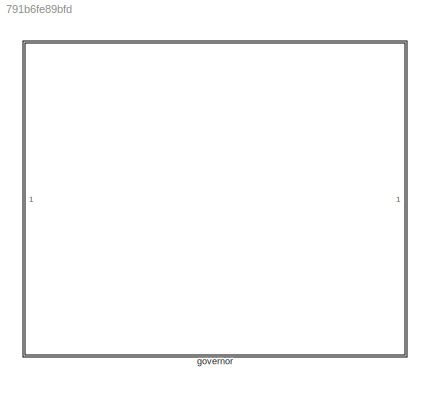
MODEL slx_791b6fe89bfd
KIND library
CONFIG AbsTol = auto
CONFIG EnableMultiTasking = off
CONFIG FixedStep = auto
CONFIG MaxStep = auto
CONFIG MinStep = auto
CONFIG RelTol = 1e-3
CONFIG SampleTimeConstraint = Unconstrained
CONFIG SolverName = VariableStepAuto
CONFIG StartTime = 0.0
CONFIG StopTime = 10.0
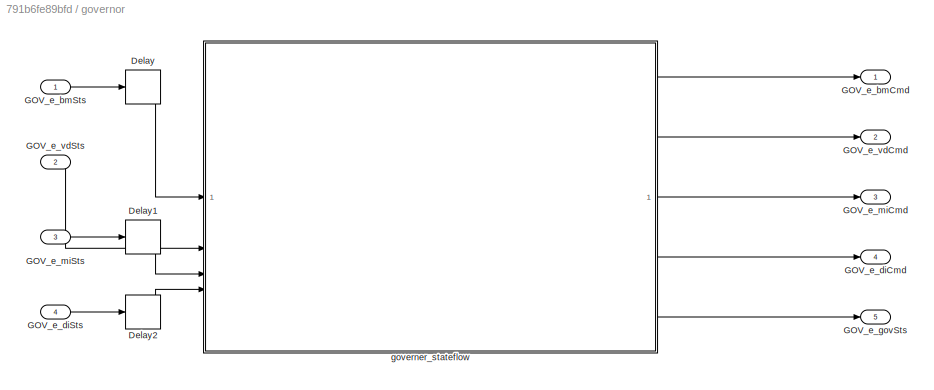
BLOCK [SubSystem] governor
BLOCK [Delay] governor/Delay
  DelayLength = 1
  InitialCondition = BM_STATUSES.BM_UNKNOWN
  InputPortMap = u0
BLOCK [Delay] governor/Delay1
  DelayLength = 1
  InitialCondition = MI_STATUSES.UNKNOWN
  InputPortMap = u0
BLOCK [Delay] governor/Delay2
  DelayLength = 1
  InitialCondition = DI_STATUSES.DI_UNKNOWN
  InputPortMap = u0
BLOCK [Outport] governor/GOV_e_bmCmd
BLOCK [Inport] governor/GOV_e_bmSts
BLOCK [Outport] governor/GOV_e_diCmd
  Port = 4
BLOCK [Inport] governor/GOV_e_diSts
  Port = 4
BLOCK [Outport] governor/GOV_e_govSts
  Port = 5
BLOCK [Outport] governor/GOV_e_miCmd
  Port = 3
BLOCK [Inport] governor/GOV_e_miSts
  Port = 3
BLOCK [Outport] governor/GOV_e_vdCmd
  Port = 2
BLOCK [Inport] governor/GOV_e_vdSts
  Port = 2
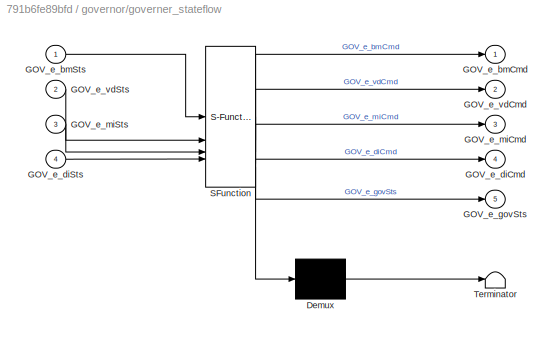
BLOCK [SubSystem] governor/governer_stateflow
  ErrorFcn = Stateflow.Translate.translate
  PermitHierarchicalResolution = ExplicitOnly
  SFBlockType = Chart
  TreatAsAtomicUnit = on
BLOCK [Demux] governor/governer_stateflow/ Demux 
  Outputs = 1
BLOCK [S-Function] governor/governer_stateflow/ SFunction 
  EnableBusSupport = off
  FunctionName = sf_sfun
  PortCounts = [4 6]
  SFcnIsStateOwnerBlock = off
  SFunctionDeploymentMode = off
  Tag = Stateflow S-Function 8
BLOCK [Terminator] governor/governer_stateflow/ Terminator 
BLOCK [Outport] governor/governer_stateflow/GOV_e_bmCmd
BLOCK [Inport] governor/governer_stateflow/GOV_e_bmSts
BLOCK [Outport] governor/governer_stateflow/GOV_e_diCmd
  Port = 4
BLOCK [Inport] governor/governer_stateflow/GOV_e_diSts
  Port = 4
BLOCK [Outport] governor/governer_stateflow/GOV_e_govSts
  Port = 5
BLOCK [Outport] governor/governer_stateflow/GOV_e_miCmd
  Port = 3
BLOCK [Inport] governor/governer_stateflow/GOV_e_miSts
  Port = 3
BLOCK [Outport] governor/governer_stateflow/GOV_e_vdCmd
  Port = 2
BLOCK [Inport] governor/governer_stateflow/GOV_e_vdSts
  Port = 2
LINE governor/Delay1:1 -> governor/governer_stateflow:3
LINE governor/Delay2:1 -> governor/governer_stateflow:4
LINE governor/Delay:1 -> governor/governer_stateflow:1
LINE governor/GOV_e_bmSts:1 -> governor/Delay:1
LINE governor/GOV_e_diSts:1 -> governor/Delay2:1
LINE governor/GOV_e_miSts:1 -> governor/Delay1:1
LINE governor/GOV_e_vdSts:1 -> governor/governer_stateflow:2
LINE governor/governer_stateflow:1 -> governor/GOV_e_bmCmd:1
LINE governor/governer_stateflow:2 -> governor/GOV_e_vdCmd:1
LINE governor/governer_stateflow:3 -> governor/GOV_e_miCmd:1
LINE governor/governer_stateflow:4 -> governor/GOV_e_diCmd:1
LINE governor/governer_stateflow:5 -> governor/GOV_e_govSts:1
CHART governor/governer_stateflow states=16 transitions=18
  STATE_LABEL 'Initialize_outputs\nen:\nGOV_e_govSts = GOV_STATUSES.GOV_INIT;\nGOV_e_diCmd = DI_CMD.DI_CMD_INIT;\nGOV_e_bmCmd = BM_CMD.BM_CMD_INIT;\nmotorStartCount = 0;\n'
  STATE_LABEL 'STARTUP\nen:\nGOV_e_govSts = GOV_STATUSES.GOV_STARTUP;'
  STATE_LABEL 'HV_startup\nen:\nGOV_e_bmCmd = ...\n    BM_CMD.HV_STARTUP;'
  STATE_LABEL 'ReadyToDrive\nen:\nGOV_e_diCmd = ...\n    DI_CMD.HV_ON;\n'
  STATE_LABEL 'Command_motor_startup\nen:\nGOV_e_miCmd = MI_CMD.CMD_STARTUP;\nmotorStartCount = motorStartCount+1;\n'
  STATE_LABEL 'Send_ReadyToDrive\nen:\nGOV_e_diCmd = DI_CMD.READY_TO_DRIVE;'
  STATE_LABEL '[GOV_e_bmSts == BM_STATUSES.BM_RUNNING]'
  STATE_LABEL '[GOV_e_diSts == DI_STATUSES.READY_TO_DRIVE_REQ]'
  STATE_LABEL '[GOV_e_miSts == ...\nMI_STATUSES.RUNNING]'
  STATE_LABEL 'HV_startup\nen:\nGOV_e_bmCmd = ...\n    BM_CMD.HV_STARTUP;'
  STATE_LABEL 'ReadyToDrive\nen:\nGOV_e_diCmd = ...\n    DI_CMD.HV_ON;\n'
  STATE_LABEL 'Command_motor_startup\nen:\nGOV_e_miCmd = MI_CMD.CMD_STARTUP;\nmotorStartCount = motorStartCount+1;\n'
  STATE_LABEL 'Send_ReadyToDrive\nen:\nGOV_e_diCmd = DI_CMD.READY_TO_DRIVE;'
  STATE_LABEL 'STARTUP_ERROR'
  STATE_LABEL 'HV_startup_error\nen:\nGOV_e_govSts =...\n    GOV_STATUSES.HV_STARTUP_ERROR;\nGOV_e_diCmd = DI_CMD.DI_SHUTDOWN;'
  STATE_LABEL 'Err_reset\nduring:\nGOV_e_miCmd=...\n    MI_CMD.ERR_RESET;'
  STATE_LABEL 'Motor_faulted\nen:\n% tell other motor to shutdown\n% if still running\nGOV_e_miCmd=...\n    MI_CMD.CMD_SHUTDOWN;\nGOV_e_govSts =...\n    GOV_STATUSES.MOTOR_STARTUP_ERROR;'
  STATE_LABEL 'DriverInterface_Error\nen:\nGOV_e_govSts =...\n    GOV_STATUSES.GOV_DI_ERROR;'
  STATE_LABEL '[motorStartCount >= 5]'
  STATE_LABEL 'HV_startup_error\nen:\nGOV_e_govSts =...\n    GOV_STATUSES.HV_STARTUP_ERROR;\nGOV_e_diCmd = DI_CMD.DI_SHUTDOWN;'
  STATE_LABEL 'Err_reset\nduring:\nGOV_e_miCmd=...\n    MI_CMD.ERR_RESET;'
  STATE_LABEL 'Motor_faulted\nen:\n% tell other motor to shutdown\n% if still running\nGOV_e_miCmd=...\n    MI_CMD.CMD_SHUTDOWN;\nGOV_e_govSts =...\n    GOV_STATUSES.MOTOR_STARTUP_ERROR;'
  STATE_LABEL 'DriverInterface_Error\nen:\nGOV_e_govSts =...\n    GOV_STATUSES.GOV_DI_ERROR;'
  STATE_LABEL 'Vehicle_shutdown\nen:\nGOV_e_govSts = GOV_STATUSES.GOV_SHUTDOWN;\nGOV_e_miCmd = MI_CMD.CMD_SHUTDOWN;\nGOV_e_diCmd = DI_CMD.DI_SHUTDOWN;\n'
  STATE_LABEL 'RUNNING_ERROR'
  STATE_LABEL 'HV_run_error\nen:\nGOV_e_diCmd = ...\n    DI_CMD.RUN_ERROR;\nGOV_e_govSts =...\n    GOV_STATUSES.HV_RUN_ERROR;'
  STATE_LABEL 'Motor_run_error\nen:\nGOV_e_diCmd = ...\n    DI_CMD.RUN_ERROR;\nGOV_e_govSts =...\n    GOV_STATUSES.MOTOR_RUN_ERROR;'
  STATE_LABEL 'HV_run_error\nen:\nGOV_e_diCmd = ...\n    DI_CMD.RUN_ERROR;\nGOV_e_govSts =...\n    GOV_STATUSES.HV_RUN_ERROR;'
  STATE_LABEL 'Motor_run_error\nen:\nGOV_e_diCmd = ...\n    DI_CMD.RUN_ERROR;\nGOV_e_govSts =...\n    GOV_STATUSES.MOTOR_RUN_ERROR;'
  STATE_LABEL 'RUNNING\nen:\nGOV_e_govSts = GOV_STATUSES.GOV_RUNNING;\n'
CHART  states=0 transitions=0
